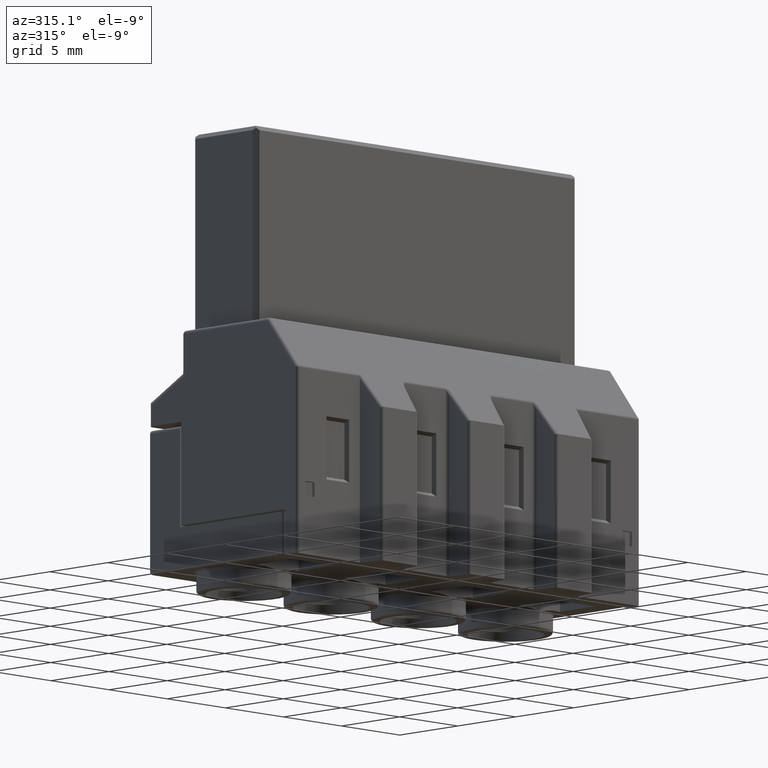
[diagram: clean part render]
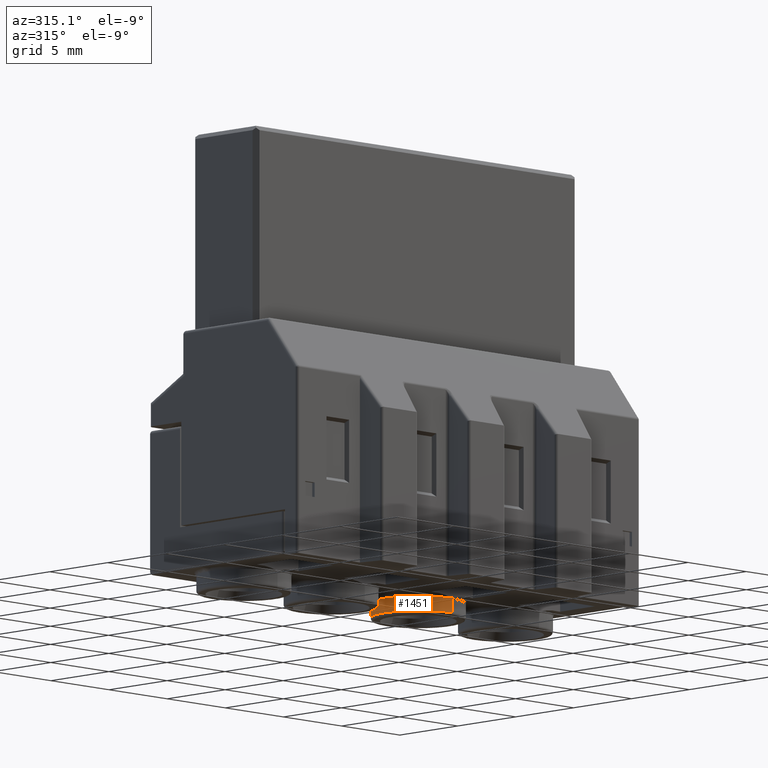
[diagram: same view with one face highlighted and labeled with its STEP entity id]
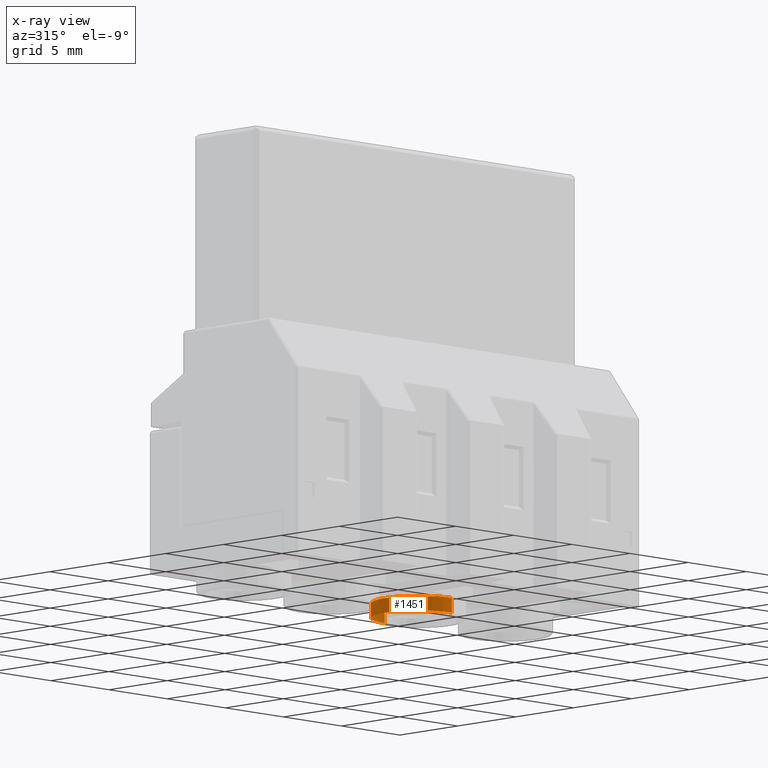
[diagram: x-ray of the same camera — body ghosted, the highlighted face saturated]
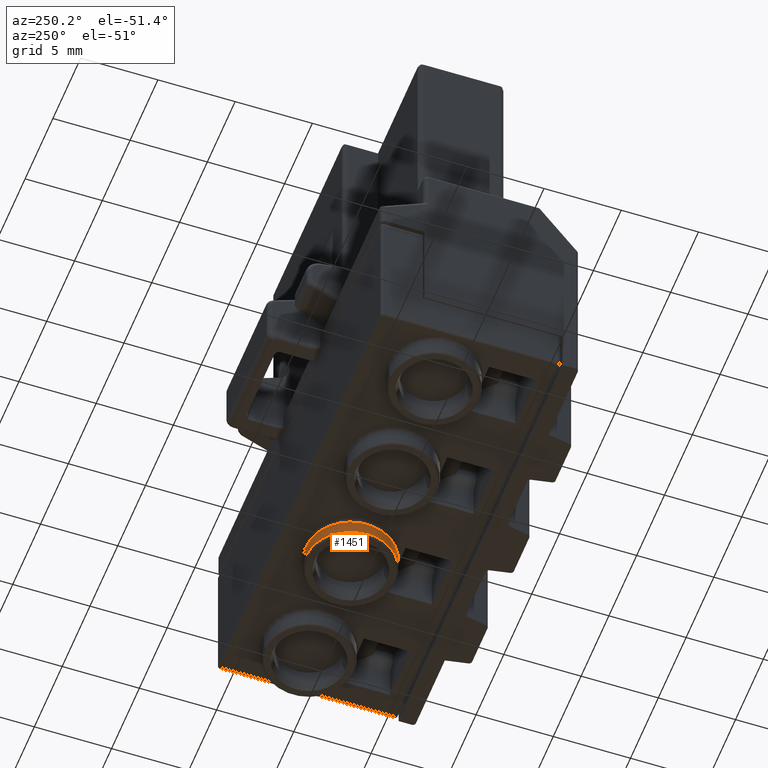
[diagram: same view with one face highlighted and labeled with its STEP entity id]
A machine part, auxiliary view. The second image highlights one B-rep face of the part: STEP entity #1451.
The next image is the same camera in x-ray: the body ghosted, the highlighted face saturated — about 2% of this face is hidden behind the body in this view.
A second angle (auxiliary view) of the same face is appended — the face is thin or edge-on in the first view.
In plain terms, the highlighted cylindrical surface (partial cylindrical patch) has radius 2.9 mm, axis along (0, 0, 1).
Its self-contained STEP definition (entity closure, byte-faithful):
#292=CYLINDRICAL_SURFACE('',#13616,2.9);
#779=FACE_OUTER_BOUND('',#2694,.T.);
#1451=ADVANCED_FACE('',(#779),#292,.T.);
#2694=EDGE_LOOP('',(#8359,#8360,#8361,#8362));
#3973=LINE('',#20414,#5480);
#3974=LINE('',#20418,#5481);
#5480=VECTOR('',#16269,1.);
#5481=VECTOR('',#16272,1.);
#8359=ORIENTED_EDGE('',*,*,#12139,.T.);
#8360=ORIENTED_EDGE('',*,*,#12140,.T.);
#8361=ORIENTED_EDGE('',*,*,#12137,.F.);
#8362=ORIENTED_EDGE('',*,*,#12141,.T.);
#10513=VERTEX_POINT('',#20409);
#10514=VERTEX_POINT('',#20411);
#10515=VERTEX_POINT('',#20415);
#10516=VERTEX_POINT('',#20417);
#12137=EDGE_CURVE('',#10514,#10515,#3973,.T.);
#12139=EDGE_CURVE('',#10513,#10516,#3974,.T.);
#12140=EDGE_CURVE('',#10516,#10515,#12895,.T.);
#12141=EDGE_CURVE('',#10514,#10513,#12896,.T.);
#12895=CIRCLE('',#13614,2.9);
#12896=CIRCLE('',#13615,2.9);
#13614=AXIS2_PLACEMENT_3D('',#20420,#16275,#16276);
#13615=AXIS2_PLACEMENT_3D('',#20421,#16277,#16278);
#13616=AXIS2_PLACEMENT_3D('',#20422,#16279,#16280);
#16269=DIRECTION('',(-3.216330905313E-010,0.,1.));
#16272=DIRECTION('',(0.000300837203692596,1.56039672961198E-008,0.999999954748487));
#16275=DIRECTION('',(0.,0.,-1.));
#16276=DIRECTION('',(0.,-1.,0.));
#16277=DIRECTION('',(0.,0.,1.));
#16278=DIRECTION('',(0.,1.,0.));
#16279=DIRECTION('',(0.,0.,1.));
#16280=DIRECTION('',(0.,-1.,0.));
#20409=CARTESIAN_POINT('',(-7.5,-2.09,-28.050000000001));
#20411=CARTESIAN_POINT('',(-7.5,3.71,-28.050000000001));
#20414=CARTESIAN_POINT('',(-7.49999999998,3.71,-28.050000000001));
#20415=CARTESIAN_POINT('',(-7.5,3.71,-27.150000000001));
#20417=CARTESIAN_POINT('',(-7.5,-2.09,-27.150000000001));
#20418=CARTESIAN_POINT('',(-7.50000000002,-2.09,-28.050000000001));
#20420=CARTESIAN_POINT('',(-7.5,0.81,-27.150000000001));
#20421=CARTESIAN_POINT('',(-7.5,0.81,-28.050000000001));
#20422=CARTESIAN_POINT('',(-7.5,0.81,-1.550000000001));